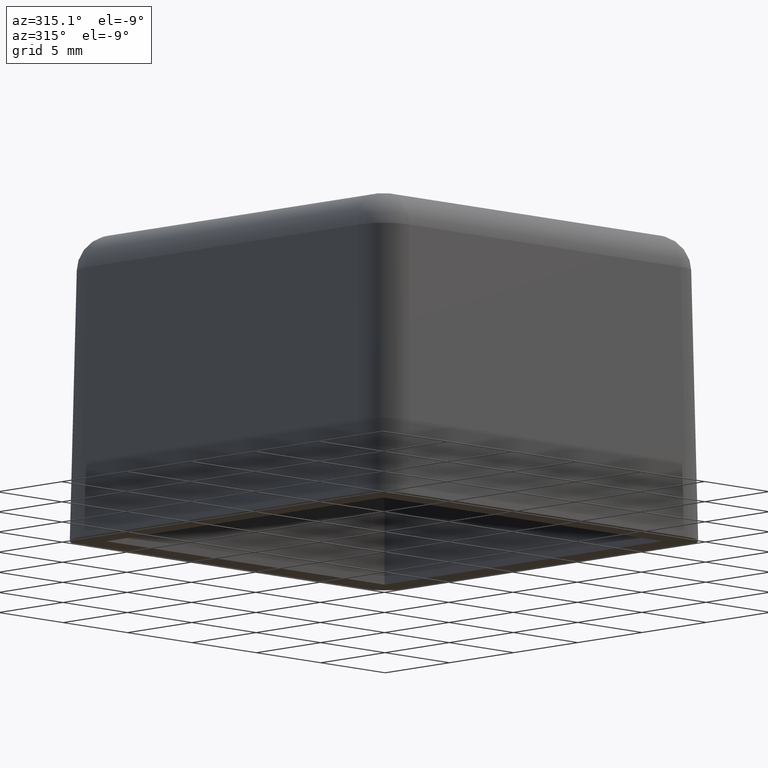
[diagram: clean part render]
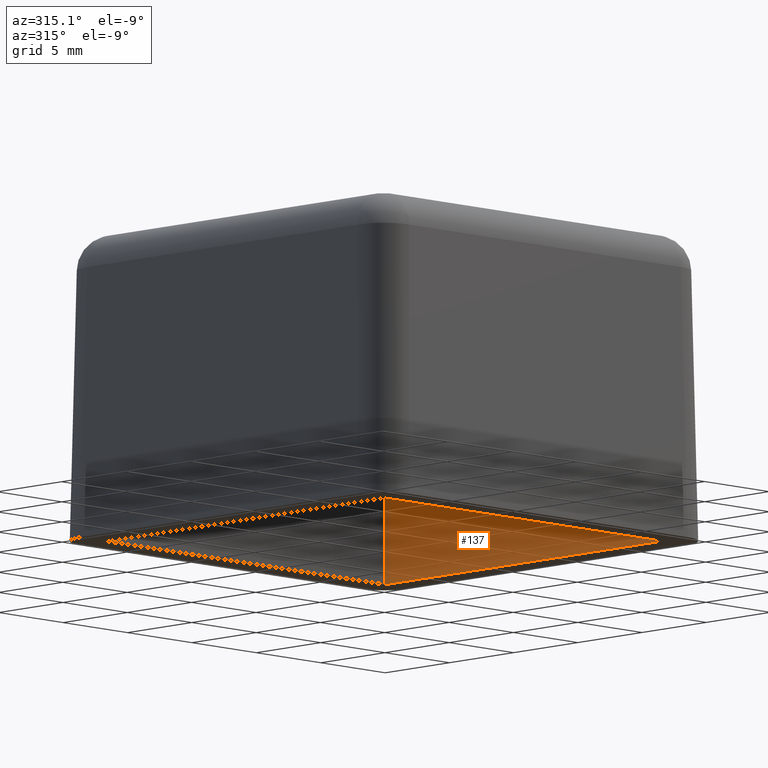
[diagram: same view with one face highlighted and labeled with its STEP entity id]
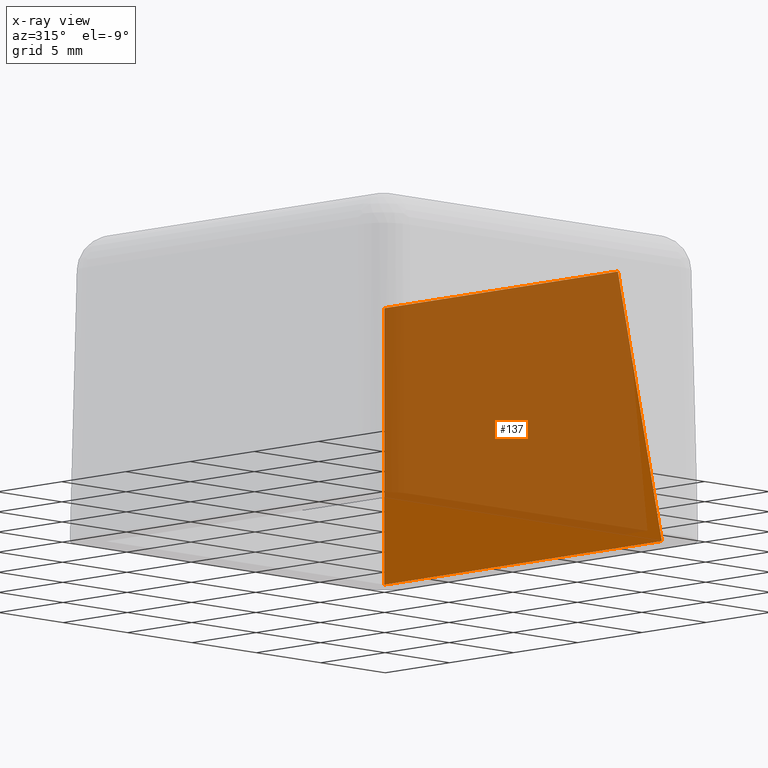
[diagram: x-ray of the same camera — body ghosted, the highlighted face saturated]
A machine part, auxiliary view. The second image highlights one B-rep face of the part: STEP entity #137.
The next image is the same camera in x-ray: the body ghosted, the highlighted face saturated — about 81% of this face is hidden behind the body in this view.
In plain terms, the highlighted planar face has unit normal (0.9936, 0, 0.1132).
Its self-contained STEP definition (entity closure, byte-faithful):
#137 = ADVANCED_FACE( '', ( #286 ), #287, .F. );
#286 = FACE_OUTER_BOUND( '', #455, .T. );
#287 = PLANE( '', #456 );
#455 = EDGE_LOOP( '', ( #994, #995, #996, #997 ) );
#456 = AXIS2_PLACEMENT_3D( '', #998, #999, #1000 );
#994 = ORIENTED_EDGE( '', *, *, #1292, .F. );
#995 = ORIENTED_EDGE( '', *, *, #1293, .F. );
#996 = ORIENTED_EDGE( '', *, *, #1287, .T. );
#997 = ORIENTED_EDGE( '', *, *, #1290, .T. );
#998 = CARTESIAN_POINT( '', ( 10.8000000000000, -10.8000000000000, 0.000000000000000 ) );
#999 = DIRECTION( '', ( 0.993571855676587, 0.000000000000000, 0.113203213767907 ) );
#1000 = DIRECTION( '', ( 0.113203213767907, 0.000000000000000, -0.993571855676587 ) );
#1287 = EDGE_CURVE( '', #1571, #1569, #1572, .F. );
#1290 = EDGE_CURVE( '', #1569, #1574, #1577, .T. );
#1292 = EDGE_CURVE( '', #1579, #1574, #1580, .F. );
#1293 = EDGE_CURVE( '', #1571, #1579, #1581, .T. );
#1569 = VERTEX_POINT( '', #2079 );
#1571 = VERTEX_POINT( '', #2082 );
#1572 = LINE( '', #2083, #2084 );
#1574 = VERTEX_POINT( '', #2087 );
#1577 = LINE( '', #2091, #2092 );
#1579 = VERTEX_POINT( '', #2095 );
#1580 = LINE( '', #2096, #2097 );
#1581 = LINE( '', #2098, #2099 );
#2079 = CARTESIAN_POINT( '', ( 9.09096587547532, 9.09096587547530, 15.0000000000000 ) );
#2082 = CARTESIAN_POINT( '', ( 9.09096587547532, -9.09096587547532, 15.0000000000000 ) );
#2083 = CARTESIAN_POINT( '', ( 9.09096587547532, -10.8000000000000, 15.0000000000000 ) );
#2084 = VECTOR( '', #2353, 1000.00000000000 );
#2087 = CARTESIAN_POINT( '', ( 10.8000000000000, 10.8000000000000, 0.000000000000000 ) );
#2091 = CARTESIAN_POINT( '', ( 10.5266990425967, 10.5266990425967, 2.39873171765322 ) );
#2092 = VECTOR( '', #2356, 1000.00000000000 );
#2095 = CARTESIAN_POINT( '', ( 10.8000000000000, -10.8000000000000, 0.000000000000000 ) );
#2096 = CARTESIAN_POINT( '', ( 10.8000000000000, -10.8000000000000, 0.000000000000000 ) );
#2097 = VECTOR( '', #2358, 1000.00000000000 );
#2098 = CARTESIAN_POINT( '', ( 10.8000000000000, -10.8000000000000, 1.92645195517741E-016 ) );
#2099 = VECTOR( '', #2359, 1000.00000000000 );
#2353 = DIRECTION( '', ( 0.000000000000000, -1.00000000000000, 0.000000000000000 ) );
#2356 = DIRECTION( '', ( 0.112484763866060, 0.112484763866060, -0.987266101816523 ) );
#2358 = DIRECTION( '', ( 0.000000000000000, -1.00000000000000, 0.000000000000000 ) );
#2359 = DIRECTION( '', ( 0.112484763866060, -0.112484763866060, -0.987266101816523 ) );